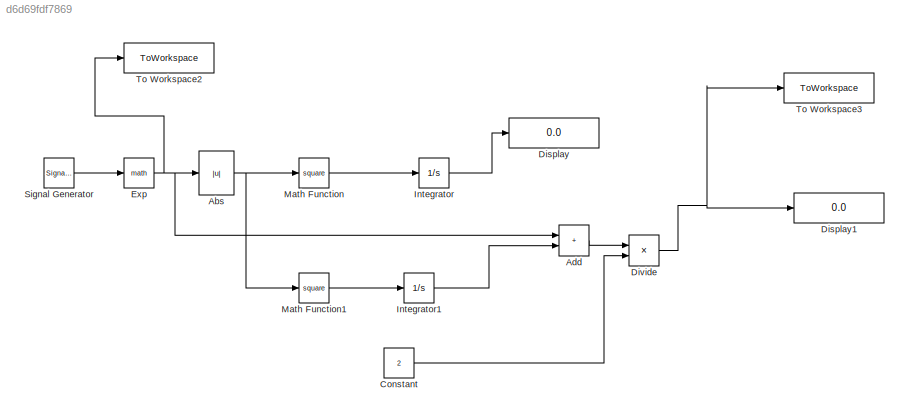
MODEL slx_d6d69fdf7869
KIND model
CONFIG AbsTol = auto
CONFIG EnableMultiTasking = off
CONFIG FixedStep = auto
CONFIG MaxStep = auto
CONFIG MinStep = auto
CONFIG RelTol = 1e-3
CONFIG SampleTimeConstraint = Unconstrained
CONFIG Solver = VariableStepAuto
CONFIG SolverName = VariableStepAuto
CONFIG StartTime = 0.0
CONFIG StopTime = 10.0
BLOCK [Abs] Abs
  SaturateOnIntegerOverflow = off
BLOCK [Sum] Add
  IconShape = rectangular
  Ports = [2, 1]
BLOCK [Constant] Constant
  Value = 2
BLOCK [Display] Display
  Decimation = 1
  Ports = [1]
BLOCK [Display] Display1
  Decimation = 1
  Ports = [1]
BLOCK [Product] Divide
  Inputs = */
  Ports = [2, 1]
BLOCK [Math] Exp
  Ports = [1, 1]
BLOCK [Integrator] Integrator
  LimitOutput = on
  Ports = [1, 1]
BLOCK [Integrator] Integrator1
  LimitOutput = on
  Ports = [1, 1]
BLOCK [Math] Math Function
  Operator = square
  Ports = [1, 1]
BLOCK [Math] Math Function1
  Operator = square
  Ports = [1, 1]
BLOCK [SignalGenerator] Signal Generator
  Ports = [0, 1]
  Units = rad/sec
BLOCK [ToWorkspace] To Workspace2
  FixptAsFi = on
  MaxDataPoints = inf
  Ports = [1]
  SampleTime = -1
  SaveFormat = Timeseries
  VariableName = expsignal
BLOCK [ToWorkspace] To Workspace3
  FixptAsFi = on
  MaxDataPoints = inf
  Ports = [1]
  SampleTime = -1
  SaveFormat = Timeseries
  VariableName = expout
NET Abs:1 -> Math Function1:1, Math Function:1
LINE Add:1 -> Divide:1
LINE Constant:1 -> Divide:2
NET Divide:1 -> Display1:1, To Workspace3:1
NET Exp:1 -> Abs:1, Add:1, To Workspace2:1
LINE Integrator1:1 -> Add:2
LINE Integrator:1 -> Display:1
LINE Math Function1:1 -> Integrator1:1
LINE Math Function:1 -> Integrator:1
LINE Signal Generator:1 -> Exp:1
note: NET lines group one-source signal fan-out (src -> all destinations, sorted); 1:1 wires keep LINE
